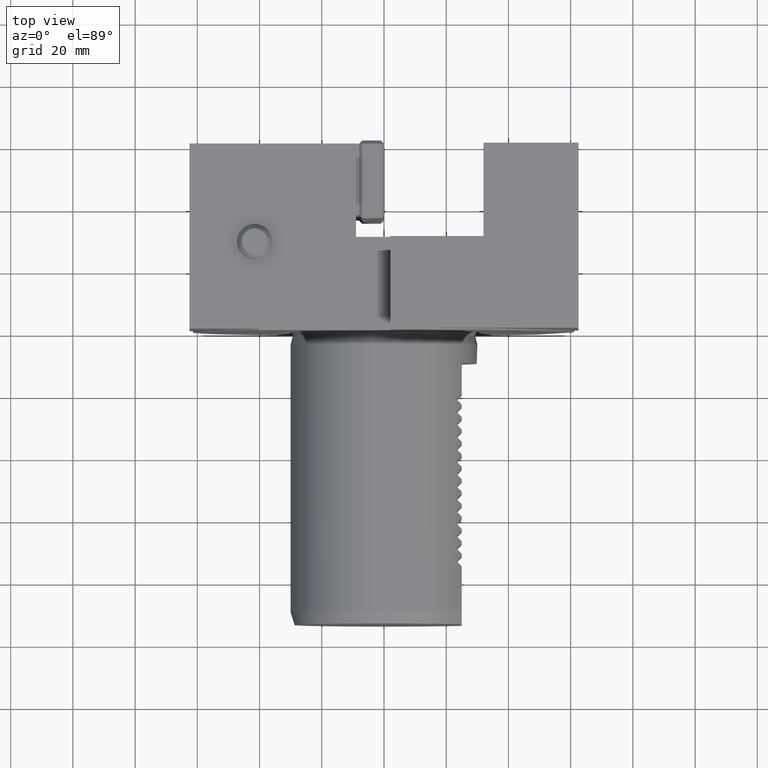
[diagram: clean part render]
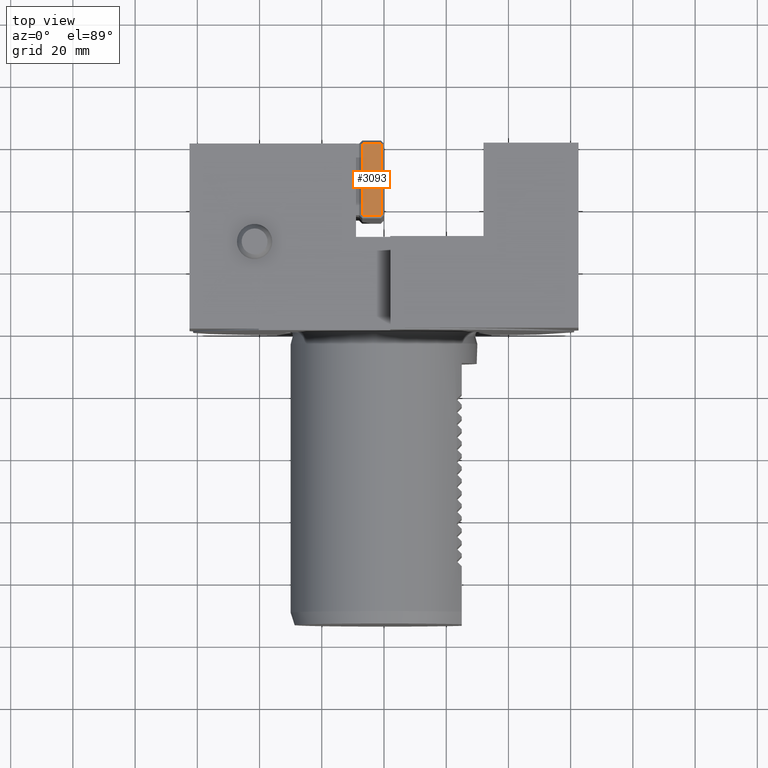
[diagram: same view with one face highlighted and labeled with its STEP entity id]
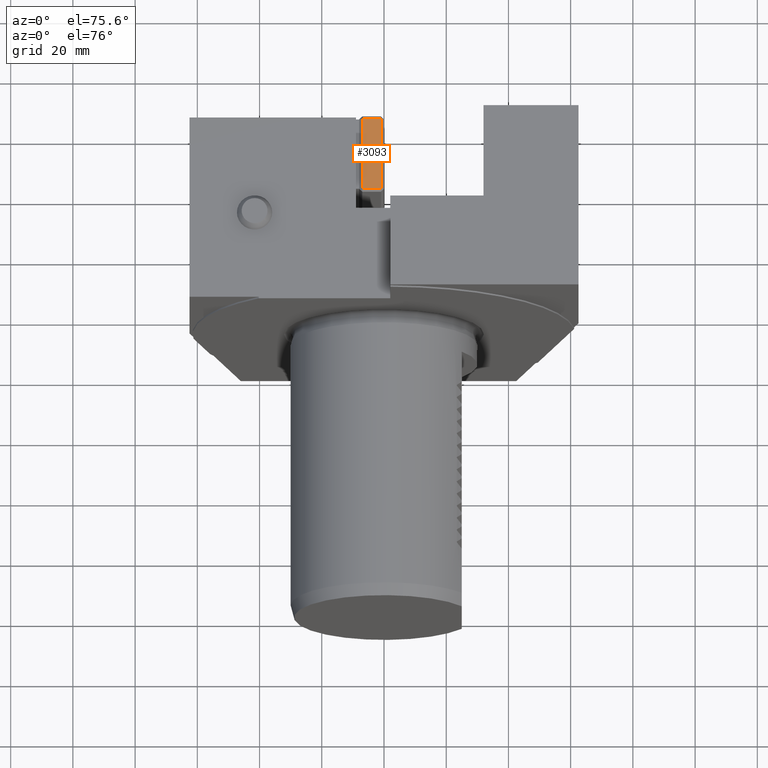
[diagram: same view with one face highlighted and labeled with its STEP entity id]
A machine part, top view. The second image highlights one B-rep face of the part: STEP entity #3093.
A second angle (auxiliary view) of the same face is appended — the face is thin or edge-on in the first view.
In plain terms, the highlighted planar face has unit normal (-0, 0, -1).
Its self-contained STEP definition (entity closure, byte-faithful):
#207 = EDGE_CURVE ( 'NONE', #1399, #1634, #16591, .T. ) ;
#1399 = VERTEX_POINT ( 'NONE', #18657 ) ;
#1594 = FACE_OUTER_BOUND ( 'NONE', #17835, .T. ) ;
#1634 = VERTEX_POINT ( 'NONE', #19877 ) ;
#1969 = AXIS2_PLACEMENT_3D ( 'NONE', #12877, #8122, #17592 ) ;
#3093 = ADVANCED_FACE ( 'Defeature completata1_3', ( #1594 ), #20385, .F. ) ;
#3681 = DIRECTION ( 'NONE',  ( 1.000000000000000000, 1.838841177024793102E-16, 0.000000000000000000 ) ) ;
#3821 = ORIENTED_EDGE ( 'NONE', *, *, #207, .T. ) ;
#5265 = LINE ( 'NONE', #17806, #12434 ) ;
#5328 = CARTESIAN_POINT ( 'NONE',  ( -1.000000000000004885, 36.99999999999999289, 44.99999999999999289 ) ) ;
#6454 = ORIENTED_EDGE ( 'NONE', *, *, #11868, .T. ) ;
#6744 = LINE ( 'NONE', #11496, #18655 ) ;
#6861 = VERTEX_POINT ( 'NONE', #5328 ) ;
#7117 = DIRECTION ( 'NONE',  ( -1.000000000000000000, -1.838841177024793102E-16, 0.000000000000000000 ) ) ;
#8122 = DIRECTION ( 'NONE',  ( -5.237838864443211976E-64, 2.848445493763592231E-48, -1.000000000000000000 ) ) ;
#9814 = EDGE_CURVE ( 'NONE', #6861, #1399, #16712, .T. ) ;
#10124 = CARTESIAN_POINT ( 'NONE',  ( -1.000000000000009104, 60.99999999999998579, 44.99999999999999289 ) ) ;
#10524 = VECTOR ( 'NONE', #7117, 1000.000000000000000 ) ;
#10599 = VECTOR ( 'NONE', #18340, 1000.000000000000000 ) ;
#11496 = CARTESIAN_POINT ( 'NONE',  ( -7.000000000000002665, 35.99999999999999289, 44.99999999999999289 ) ) ;
#11868 = EDGE_CURVE ( 'NONE', #1634, #15449, #6744, .T. ) ;
#12208 = EDGE_CURVE ( 'NONE', #15449, #6861, #5265, .T. ) ;
#12434 = VECTOR ( 'NONE', #3681, 1000.000000000000000 ) ;
#12877 = CARTESIAN_POINT ( 'NONE',  ( -3.469446951953614189E-15, 35.99999999999999289, 44.99999999999999289 ) ) ;
#13354 = DIRECTION ( 'NONE',  ( 1.838841177024792856E-16, -1.000000000000000000, 0.000000000000000000 ) ) ;
#13828 = CARTESIAN_POINT ( 'NONE',  ( -7.806255641895631925E-15, 59.99999999999998579, 44.99999999999999289 ) ) ;
#15449 = VERTEX_POINT ( 'NONE', #19288 ) ;
#16591 = LINE ( 'NONE', #13828, #10524 ) ;
#16712 = LINE ( 'NONE', #10124, #10599 ) ;
#17432 = ORIENTED_EDGE ( 'NONE', *, *, #12208, .T. ) ;
#17592 = DIRECTION ( 'NONE',  ( -1.000000000000000000, -1.838841177024793102E-16, 0.000000000000000000 ) ) ;
#17806 = CARTESIAN_POINT ( 'NONE',  ( -4.336808689942017736E-15, 36.99999999999999289, 44.99999999999999289 ) ) ;
#17835 = EDGE_LOOP ( 'NONE', ( #18294, #3821, #6454, #17432 ) ) ;
#18294 = ORIENTED_EDGE ( 'NONE', *, *, #9814, .T. ) ;
#18340 = DIRECTION ( 'NONE',  ( -1.838841177024792856E-16, 1.000000000000000000, 0.000000000000000000 ) ) ;
#18655 = VECTOR ( 'NONE', #13354, 1000.000000000000000 ) ;
#18657 = CARTESIAN_POINT ( 'NONE',  ( -1.000000000000009104, 59.99999999999998579, 44.99999999999999289 ) ) ;
#19288 = CARTESIAN_POINT ( 'NONE',  ( -7.000000000000002665, 36.99999999999999289, 44.99999999999999289 ) ) ;
#19877 = CARTESIAN_POINT ( 'NONE',  ( -7.000000000000007994, 59.99999999999998579, 44.99999999999999289 ) ) ;
#20385 = PLANE ( 'NONE',  #1969 ) ;